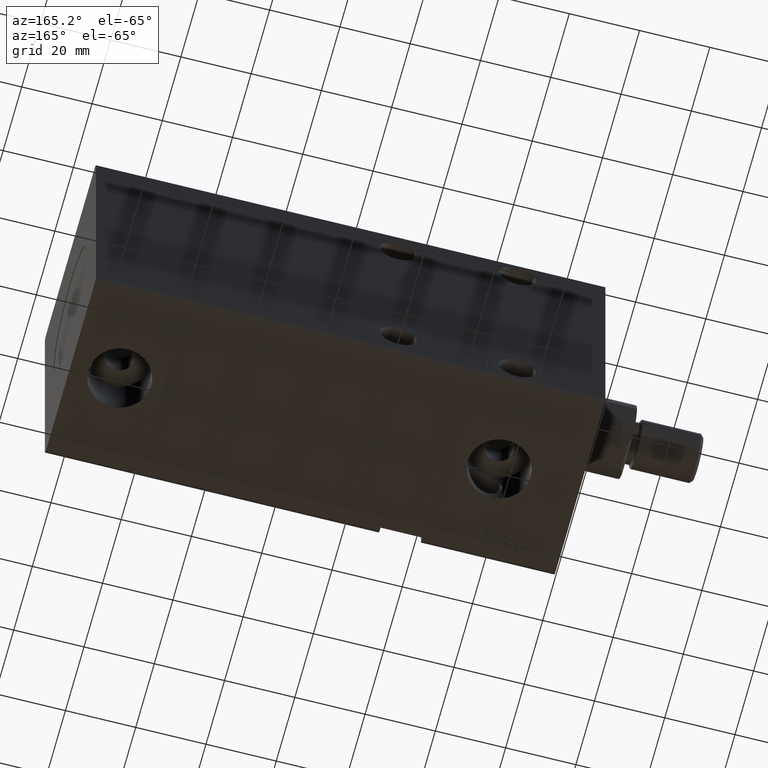
[diagram: clean part render]
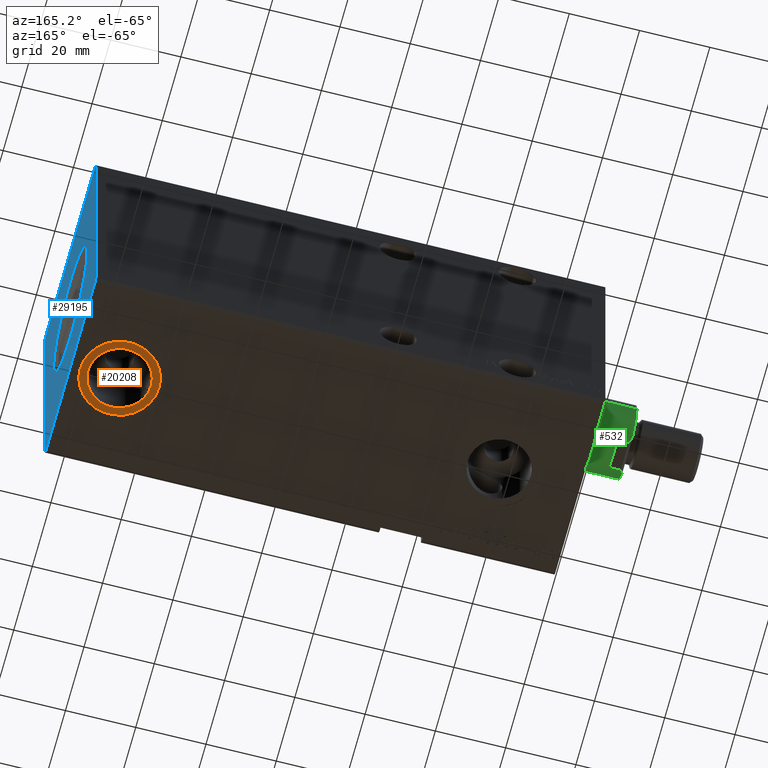
[diagram: same view with three faces highlighted in distinct colors, each labeled with its STEP entity id]
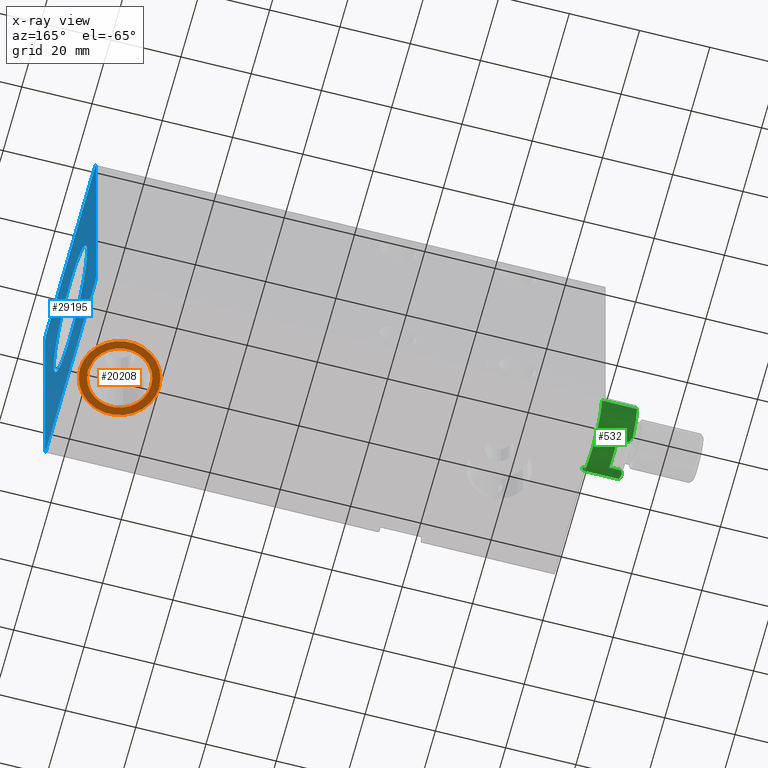
[diagram: x-ray of the same camera — body ghosted, the three highlighted faces saturated]
A machine part, auxiliary view with three faces highlighted in distinct colors.
The next image is the same camera in x-ray (body ghosted, the three faces saturated) — at least one of them is partly hidden behind the body in this view.
Their STEP definitions:

[orange] entity #20208 — the highlighted planar face has unit normal (0, 0, -1).
#1212 = ORIENTED_EDGE ( 'NONE', *, *, #2787, .F. ) ;
#1744 = CIRCLE ( 'NONE', #2369, 8.999999999999994671 ) ;
#2094 = DIRECTION ( 'NONE',  ( 0.000000000000000000, 0.000000000000000000, -1.000000000000000000 ) ) ;
#2369 = AXIS2_PLACEMENT_3D ( 'NONE', #18526, #34290, #12471 ) ;
#2787 = EDGE_CURVE ( 'NONE', #6159, #21923, #1744, .T. ) ;
#4942 = CARTESIAN_POINT ( 'NONE',  ( 130.9999999999999432, -1.771764358548707728E-14, -37.39999999999999147 ) ) ;
#5430 = AXIS2_PLACEMENT_3D ( 'NONE', #7966, #2094, #20269 ) ;
#6159 = VERTEX_POINT ( 'NONE', #24823 ) ;
#7966 = CARTESIAN_POINT ( 'NONE',  ( 130.9999999999999432, -1.771764358548707728E-14, -37.39999999999999147 ) ) ;
#8074 = EDGE_CURVE ( 'NONE', #21923, #6159, #28478, .T. ) ;
#10386 = DIRECTION ( 'NONE',  ( -1.000000000000000000, 0.000000000000000000, 0.000000000000000000 ) ) ;
#11186 = FACE_BOUND ( 'NONE', #33023, .T. ) ;
#12356 = AXIS2_PLACEMENT_3D ( 'NONE', #25749, #38079, #10386 ) ;
#12471 = DIRECTION ( 'NONE',  ( -1.000000000000000000, 0.000000000000000000, 0.000000000000000000 ) ) ;
#12683 = DIRECTION ( 'NONE',  ( 0.000000000000000000, 0.000000000000000000, -1.000000000000000000 ) ) ;
#13829 = AXIS2_PLACEMENT_3D ( 'NONE', #33518, #12683, #21394 ) ;
#14211 = DIRECTION ( 'NONE',  ( 0.000000000000000000, 0.000000000000000000, -1.000000000000000000 ) ) ;
#16347 = AXIS2_PLACEMENT_3D ( 'NONE', #4942, #14211, #29179 ) ;
#18526 = CARTESIAN_POINT ( 'NONE',  ( 130.9999999999999432, -1.771764358548707728E-14, -37.39999999999999147 ) ) ;
#19805 = CARTESIAN_POINT ( 'NONE',  ( 121.9999999999999574, -1.771764358548707728E-14, -37.39999999999999147 ) ) ;
#20163 = EDGE_CURVE ( 'NONE', #22786, #27234, #20235, .T. ) ;
#20208 = ADVANCED_FACE ( 'NONE', ( #11186, #23511 ), #38480, .T. ) ;
#20235 = CIRCLE ( 'NONE', #5430, 11.24999999999999645 ) ;
#20269 = DIRECTION ( 'NONE',  ( -1.000000000000000000, 0.000000000000000000, 0.000000000000000000 ) ) ;
#21394 = DIRECTION ( 'NONE',  ( -1.000000000000000000, 0.000000000000000000, 0.000000000000000000 ) ) ;
#21890 = EDGE_LOOP ( 'NONE', ( #31129, #22440 ) ) ;
#21923 = VERTEX_POINT ( 'NONE', #19805 ) ;
#22440 = ORIENTED_EDGE ( 'NONE', *, *, #20163, .T. ) ;
#22786 = VERTEX_POINT ( 'NONE', #22845 ) ;
#22845 = CARTESIAN_POINT ( 'NONE',  ( 142.2499999999999432, -1.633991593644630371E-14, -37.39999999999999147 ) ) ;
#23511 = FACE_OUTER_BOUND ( 'NONE', #21890, .T. ) ;
#24823 = CARTESIAN_POINT ( 'NONE',  ( 139.9999999999999716, -1.661546146625446095E-14, -37.39999999999999147 ) ) ;
#25749 = CARTESIAN_POINT ( 'NONE',  ( 130.9999999999999432, -1.771764358548707728E-14, -37.39999999999999147 ) ) ;
#26414 = EDGE_CURVE ( 'NONE', #27234, #22786, #39646, .T. ) ;
#27234 = VERTEX_POINT ( 'NONE', #32910 ) ;
#28478 = CIRCLE ( 'NONE', #12356, 8.999999999999994671 ) ;
#29179 = DIRECTION ( 'NONE',  ( -1.000000000000000000, 0.000000000000000000, -0.000000000000000000 ) ) ;
#31129 = ORIENTED_EDGE ( 'NONE', *, *, #26414, .T. ) ;
#32910 = CARTESIAN_POINT ( 'NONE',  ( 119.7499999999999574, -1.771764358548707728E-14, -37.39999999999999147 ) ) ;
#33023 = EDGE_LOOP ( 'NONE', ( #35270, #1212 ) ) ;
#33518 = CARTESIAN_POINT ( 'NONE',  ( 130.9999999999999432, -1.771764358548707728E-14, -37.39999999999999147 ) ) ;
#34290 = DIRECTION ( 'NONE',  ( 0.000000000000000000, 0.000000000000000000, -1.000000000000000000 ) ) ;
#35270 = ORIENTED_EDGE ( 'NONE', *, *, #8074, .F. ) ;
#38079 = DIRECTION ( 'NONE',  ( 0.000000000000000000, 0.000000000000000000, -1.000000000000000000 ) ) ;
#38480 = PLANE ( 'NONE',  #16347 ) ;
#39646 = CIRCLE ( 'NONE', #13829, 11.24999999999999645 ) ;

[blue] entity #29195 — the highlighted planar face has unit normal (1, 0, 0).
#711 = LINE ( 'NONE', #32227, #31111 ) ;
#1101 = CARTESIAN_POINT ( 'NONE',  ( 145.0000000000000000, 26.50000000000000711, -37.49999999999999289 ) ) ;
#1561 = VECTOR ( 'NONE', #19340, 1000.000000000000000 ) ;
#2174 = ORIENTED_EDGE ( 'NONE', *, *, #9287, .F. ) ;
#2483 = EDGE_CURVE ( 'NONE', #22984, #27415, #27282, .T. ) ;
#3860 = CARTESIAN_POINT ( 'NONE',  ( 145.0000000000000000, 26.50000000000000355, 37.50000000000000711 ) ) ;
#5126 = ORIENTED_EDGE ( 'NONE', *, *, #11598, .T. ) ;
#5602 = EDGE_CURVE ( 'NONE', #16958, #10257, #39876, .T. ) ;
#6293 = ORIENTED_EDGE ( 'NONE', *, *, #16533, .T. ) ;
#6513 = CARTESIAN_POINT ( 'NONE',  ( 145.0000000000000000, 0.000000000000000000, -18.00000000000000000 ) ) ;
#7042 = CARTESIAN_POINT ( 'NONE',  ( 145.0000000000000000, -27.50000000000000711, 36.50000000000000711 ) ) ;
#7733 = CARTESIAN_POINT ( 'NONE',  ( 145.0000000000000000, 0.000000000000000000, 0.000000000000000000 ) ) ;
#7762 = CARTESIAN_POINT ( 'NONE',  ( 145.0000000000000000, 27.50000000000000711, -36.49999999999999289 ) ) ;
#7927 = DIRECTION ( 'NONE',  ( 0.000000000000000000, 0.000000000000000000, -1.000000000000000000 ) ) ;
#8727 = ORIENTED_EDGE ( 'NONE', *, *, #31079, .T. ) ;
#8906 = CARTESIAN_POINT ( 'NONE',  ( 145.0000000000000000, -26.50000000000000355, -37.49999999999999289 ) ) ;
#9179 = CARTESIAN_POINT ( 'NONE',  ( 145.0000000000000000, -27.50000000000000355, -36.49999999999998579 ) ) ;
#9228 = ORIENTED_EDGE ( 'NONE', *, *, #14860, .T. ) ;
#9287 = EDGE_CURVE ( 'NONE', #10257, #16958, #21136, .T. ) ;
#9299 = CARTESIAN_POINT ( 'NONE',  ( 145.0000000000000000, -26.50000000000000711, 37.50000000000000711 ) ) ;
#9562 = AXIS2_PLACEMENT_3D ( 'NONE', #7733, #11539, #7927 ) ;
#10257 = VERTEX_POINT ( 'NONE', #6513 ) ;
#10316 = LINE ( 'NONE', #3860, #17576 ) ;
#10981 = LINE ( 'NONE', #7762, #13913 ) ;
#11250 = CARTESIAN_POINT ( 'NONE',  ( 145.0000000000000000, 0.000000000000000000, 0.000000000000000000 ) ) ;
#11539 = DIRECTION ( 'NONE',  ( 1.000000000000000000, 0.000000000000000000, 0.000000000000000000 ) ) ;
#11598 = EDGE_CURVE ( 'NONE', #33071, #21192, #39415, .T. ) ;
#12586 = CARTESIAN_POINT ( 'NONE',  ( 145.0000000000000000, 27.50000000000000711, -36.49999999999999289 ) ) ;
#12589 = PLANE ( 'NONE',  #39712 ) ;
#13333 = VERTEX_POINT ( 'NONE', #25522 ) ;
#13622 = LINE ( 'NONE', #1101, #28712 ) ;
#13913 = VECTOR ( 'NONE', #32391, 1000.000000000000000 ) ;
#14860 = EDGE_CURVE ( 'NONE', #13333, #39306, #24649, .T. ) ;
#15020 = FACE_OUTER_BOUND ( 'NONE', #37877, .T. ) ;
#15808 = CARTESIAN_POINT ( 'NONE',  ( 145.0000000000000000, 0.000000000000000000, 0.000000000000000000 ) ) ;
#15849 = DIRECTION ( 'NONE',  ( 0.000000000000000000, 0.7071067811865451302, -0.7071067811865500152 ) ) ;
#15890 = VERTEX_POINT ( 'NONE', #12586 ) ;
#16306 = ORIENTED_EDGE ( 'NONE', *, *, #24423, .T. ) ;
#16533 = EDGE_CURVE ( 'NONE', #29241, #22984, #711, .T. ) ;
#16958 = VERTEX_POINT ( 'NONE', #19433 ) ;
#17168 = EDGE_CURVE ( 'NONE', #21192, #13333, #10316, .T. ) ;
#17576 = VECTOR ( 'NONE', #38003, 1000.000000000000000 ) ;
#17607 = EDGE_LOOP ( 'NONE', ( #2174, #28687 ) ) ;
#18037 = CARTESIAN_POINT ( 'NONE',  ( 145.0000000000000000, 26.50000000000000355, 37.50000000000000711 ) ) ;
#18171 = DIRECTION ( 'NONE',  ( 0.000000000000000000, 1.000000000000000000, 0.000000000000000000 ) ) ;
#19340 = DIRECTION ( 'NONE',  ( 0.000000000000000000, 4.752667057470705491E-17, -1.000000000000000000 ) ) ;
#19433 = CARTESIAN_POINT ( 'NONE',  ( 145.0000000000000000, 2.204364238465235428E-15, 18.00000000000000000 ) ) ;
#20901 = CARTESIAN_POINT ( 'NONE',  ( 145.0000000000000000, 27.50000000000000355, 36.50000000000000711 ) ) ;
#21010 = CARTESIAN_POINT ( 'NONE',  ( 145.0000000000000000, 27.50000000000000355, 36.50000000000000711 ) ) ;
#21136 = CIRCLE ( 'NONE', #9562, 18.00000000000000000 ) ;
#21192 = VERTEX_POINT ( 'NONE', #18037 ) ;
#21600 = LINE ( 'NONE', #7042, #1561 ) ;
#21607 = DIRECTION ( 'NONE',  ( 0.000000000000000000, -0.7071067811865474617, -0.7071067811865474617 ) ) ;
#21676 = CARTESIAN_POINT ( 'NONE',  ( 145.0000000000000000, 26.50000000000000711, -37.49999999999999289 ) ) ;
#21989 = EDGE_CURVE ( 'NONE', #39306, #29241, #21600, .T. ) ;
#22984 = VERTEX_POINT ( 'NONE', #37561 ) ;
#23383 = DIRECTION ( 'NONE',  ( 1.000000000000000000, 0.000000000000000000, 0.000000000000000000 ) ) ;
#24423 = EDGE_CURVE ( 'NONE', #27415, #15890, #13622, .T. ) ;
#24649 = LINE ( 'NONE', #9299, #36228 ) ;
#24925 = DIRECTION ( 'NONE',  ( 0.000000000000000000, 0.000000000000000000, -1.000000000000000000 ) ) ;
#25522 = CARTESIAN_POINT ( 'NONE',  ( 145.0000000000000000, -26.50000000000000711, 37.50000000000000711 ) ) ;
#26262 = VECTOR ( 'NONE', #18171, 1000.000000000000000 ) ;
#26342 = AXIS2_PLACEMENT_3D ( 'NONE', #11250, #23383, #32068 ) ;
#27282 = LINE ( 'NONE', #8906, #26262 ) ;
#27283 = CARTESIAN_POINT ( 'NONE',  ( 145.0000000000000000, -27.50000000000000711, 36.50000000000000711 ) ) ;
#27415 = VERTEX_POINT ( 'NONE', #21676 ) ;
#28150 = DIRECTION ( 'NONE',  ( 1.000000000000000000, 0.000000000000000000, 0.000000000000000000 ) ) ;
#28687 = ORIENTED_EDGE ( 'NONE', *, *, #5602, .F. ) ;
#28712 = VECTOR ( 'NONE', #38091, 1000.000000000000114 ) ;
#29195 = ADVANCED_FACE ( 'NONE', ( #36651, #15020 ), #12589, .T. ) ;
#29241 = VERTEX_POINT ( 'NONE', #9179 ) ;
#31079 = EDGE_CURVE ( 'NONE', #15890, #33071, #10981, .T. ) ;
#31111 = VECTOR ( 'NONE', #15849, 1000.000000000000114 ) ;
#32068 = DIRECTION ( 'NONE',  ( 0.000000000000000000, 0.000000000000000000, -1.000000000000000000 ) ) ;
#32227 = CARTESIAN_POINT ( 'NONE',  ( 145.0000000000000000, -27.50000000000000355, -36.49999999999998579 ) ) ;
#32391 = DIRECTION ( 'NONE',  ( 0.000000000000000000, -4.752667057470704875E-17, 1.000000000000000000 ) ) ;
#33071 = VERTEX_POINT ( 'NONE', #20901 ) ;
#33354 = ORIENTED_EDGE ( 'NONE', *, *, #17168, .T. ) ;
#36228 = VECTOR ( 'NONE', #21607, 1000.000000000000114 ) ;
#36575 = DIRECTION ( 'NONE',  ( 0.000000000000000000, -0.7071067811865474617, 0.7071067811865474617 ) ) ;
#36651 = FACE_BOUND ( 'NONE', #17607, .T. ) ;
#37561 = CARTESIAN_POINT ( 'NONE',  ( 145.0000000000000000, -26.50000000000000355, -37.49999999999999289 ) ) ;
#37877 = EDGE_LOOP ( 'NONE', ( #5126, #33354, #9228, #38747, #6293, #39726, #16306, #8727 ) ) ;
#37996 = VECTOR ( 'NONE', #36575, 1000.000000000000114 ) ;
#38003 = DIRECTION ( 'NONE',  ( 0.000000000000000000, -1.000000000000000000, 0.000000000000000000 ) ) ;
#38091 = DIRECTION ( 'NONE',  ( 0.000000000000000000, 0.7071067811865474617, 0.7071067811865474617 ) ) ;
#38747 = ORIENTED_EDGE ( 'NONE', *, *, #21989, .T. ) ;
#39306 = VERTEX_POINT ( 'NONE', #27283 ) ;
#39415 = LINE ( 'NONE', #21010, #37996 ) ;
#39712 = AXIS2_PLACEMENT_3D ( 'NONE', #15808, #28150, #24925 ) ;
#39726 = ORIENTED_EDGE ( 'NONE', *, *, #2483, .T. ) ;
#39876 = CIRCLE ( 'NONE', #26342, 18.00000000000000000 ) ;

[green] entity #532 — the highlighted cylindrical surface (partial cylindrical patch) has radius 10.46 mm, axis along (-1, -0, -0).
#56 = DIRECTION ( 'NONE',  ( -0.000000000000000000, -1.827169771437783368E-16, 1.000000000000000000 ) ) ;
#444 = CARTESIAN_POINT ( 'NONE',  ( 0.000000000000000000, -2.347913156297551696E-14, 128.5000000000000000 ) ) ;
#532 = ADVANCED_FACE ( 'NONE', ( #37030 ), #24902, .T. ) ;
#652 = EDGE_CURVE ( 'NONE', #37500, #34400, #35512, .T. ) ;
#893 = LINE ( 'NONE', #13208, #3046 ) ;
#1196 = CARTESIAN_POINT ( 'NONE',  ( -9.056889589612579172, -5.256118063110188920, 128.2331104103874679 ) ) ;
#1376 = VERTEX_POINT ( 'NONE', #28522 ) ;
#1413 = EDGE_CURVE ( 'NONE', #34400, #28186, #24708, .T. ) ;
#1822 = VECTOR ( 'NONE', #8565, 1000.000000000000000 ) ;
#3046 = VECTOR ( 'NONE', #25545, 1000.000000000000000 ) ;
#3224 = ORIENTED_EDGE ( 'NONE', *, *, #36280, .F. ) ;
#3251 = EDGE_CURVE ( 'NONE', #29637, #1376, #893, .T. ) ;
#4152 = CARTESIAN_POINT ( 'NONE',  ( 0.000000000000000000, -10.46000000000002395, 128.5000000000000000 ) ) ;
#4698 = DIRECTION ( 'NONE',  ( 0.000000000000000000, -1.000000000000000000, 0.000000000000000000 ) ) ;
#5055 = AXIS2_PLACEMENT_3D ( 'NONE', #33392, #5732, #29967 ) ;
#5144 = CARTESIAN_POINT ( 'NONE',  ( -9.500000000000000000, -4.377396486497445061, 128.5000000000000000 ) ) ;
#5495 = CARTESIAN_POINT ( 'NONE',  ( -9.500000000000000000, -4.377396486497445061, 127.7900000000000205 ) ) ;
#5732 = DIRECTION ( 'NONE',  ( 0.000000000000000000, 0.000000000000000000, 1.000000000000000000 ) ) ;
#6160 = VERTEX_POINT ( 'NONE', #8884 ) ;
#6332 = EDGE_CURVE ( 'NONE', #18042, #6160, #25669, .T. ) ;
#7533 = ORIENTED_EDGE ( 'NONE', *, *, #3251, .T. ) ;
#8261 = AXIS2_PLACEMENT_3D ( 'NONE', #37539, #9861, #19531 ) ;
#8535 = CARTESIAN_POINT ( 'NONE',  ( 0.000000000000000000, -2.347913156297551696E-14, 128.5000000000000000 ) ) ;
#8565 = DIRECTION ( 'NONE',  ( 0.000000000000000000, 1.827169771437783368E-16, -1.000000000000000000 ) ) ;
#8884 = CARTESIAN_POINT ( 'NONE',  ( -8.790000000000038227, 5.669876541865709996, 128.5000000000000000 ) ) ;
#9358 = DIRECTION ( 'NONE',  ( -0.000000000000000000, -1.827169771437783368E-16, 1.000000000000000000 ) ) ;
#9861 = DIRECTION ( 'NONE',  ( -0.000000000000000000, -1.827169771437783368E-16, 1.000000000000000000 ) ) ;
#11597 = AXIS2_PLACEMENT_3D ( 'NONE', #444, #56, #21462 ) ;
#11693 = EDGE_CURVE ( 'NONE', #34967, #26977, #31393, .T. ) ;
#11749 = DIRECTION ( 'NONE',  ( 0.000000000000000000, -1.000000000000000000, 0.000000000000000000 ) ) ;
#12628 = ORIENTED_EDGE ( 'NONE', *, *, #1413, .T. ) ;
#13208 = CARTESIAN_POINT ( 'NONE',  ( -9.500000000000000000, 4.377396486497397987, 128.5000000000000000 ) ) ;
#13644 = ORIENTED_EDGE ( 'NONE', *, *, #20688, .F. ) ;
#16668 = CARTESIAN_POINT ( 'NONE',  ( -9.500000000000000000, 4.377396486497398875, 124.5000000000000000 ) ) ;
#18042 = VERTEX_POINT ( 'NONE', #27319 ) ;
#18348 = EDGE_LOOP ( 'NONE', ( #13644, #29846, #12628, #28197, #24166, #18760, #3224, #7533, #35610, #22766 ) ) ;
#18405 = AXIS2_PLACEMENT_3D ( 'NONE', #8535, #33363, #11749 ) ;
#18760 = ORIENTED_EDGE ( 'NONE', *, *, #36327, .T. ) ;
#19531 = DIRECTION ( 'NONE',  ( 0.000000000000000000, -1.000000000000000000, 0.000000000000000000 ) ) ;
#20688 = EDGE_CURVE ( 'NONE', #37500, #18042, #30714, .T. ) ;
#21077 = CARTESIAN_POINT ( 'NONE',  ( -9.293949384395547852, 4.824575729748583619, 127.9960506156044886 ) ) ;
#21462 = DIRECTION ( 'NONE',  ( 0.000000000000000000, -1.000000000000000000, 0.000000000000000000 ) ) ;
#21811 = CARTESIAN_POINT ( 'NONE',  ( -8.790000000000038227, -5.669876541865757069, 128.5000000000000000 ) ) ;
#22596 = AXIS2_PLACEMENT_3D ( 'NONE', #28927, #25489, #4698 ) ;
#22766 = ORIENTED_EDGE ( 'NONE', *, *, #6332, .F. ) ;
#22894 = CARTESIAN_POINT ( 'NONE',  ( -9.500000000000000000, -4.377396486497444172, 124.5000000000000000 ) ) ;
#24166 = ORIENTED_EDGE ( 'NONE', *, *, #11693, .T. ) ;
#24708 = LINE ( 'NONE', #37036, #30337 ) ;
#24883 = EDGE_CURVE ( 'NONE', #1376, #6160, #39677, .T. ) ;
#24902 = CYLINDRICAL_SURFACE ( 'NONE', #11597, 10.45999999999999908 ) ;
#25393 = CARTESIAN_POINT ( 'NONE',  ( 1.280980551908131330E-15, 10.45999999999997421, 128.5000000000000000 ) ) ;
#25489 = DIRECTION ( 'NONE',  ( -0.000000000000000000, -1.827169771437783368E-16, 1.000000000000000000 ) ) ;
#25545 = DIRECTION ( 'NONE',  ( -0.000000000000000000, -1.827169771437783368E-16, 1.000000000000000000 ) ) ;
#25669 = CIRCLE ( 'NONE', #8261, 10.46000000000000085 ) ;
#26043 = VECTOR ( 'NONE', #31850, 1000.000000000000000 ) ;
#26081 = EDGE_CURVE ( 'NONE', #34967, #28186, #35852, .T. ) ;
#26354 = LINE ( 'NONE', #5144, #1822 ) ;
#26557 = CARTESIAN_POINT ( 'NONE',  ( -8.790000000000038227, 5.669876541865709996, 128.5000000000000000 ) ) ;
#26977 = VERTEX_POINT ( 'NONE', #5495 ) ;
#26990 = CIRCLE ( 'NONE', #5055, 10.45999999999999908 ) ;
#27024 = CARTESIAN_POINT ( 'NONE',  ( 0.000000000000000000, 10.45999999999997776, 118.5000000000000000 ) ) ;
#27319 = CARTESIAN_POINT ( 'NONE',  ( 1.280980551908131330E-15, 10.45999999999997598, 128.5000000000000000 ) ) ;
#27356 = CARTESIAN_POINT ( 'NONE',  ( -9.056889589612579172, 5.256118063110140071, 128.2331104103874679 ) ) ;
#28186 = VERTEX_POINT ( 'NONE', #4152 ) ;
#28197 = ORIENTED_EDGE ( 'NONE', *, *, #26081, .F. ) ;
#28522 = CARTESIAN_POINT ( 'NONE',  ( -9.500000000000000000, 4.377396486497397987, 127.7900000000000205 ) ) ;
#28927 = CARTESIAN_POINT ( 'NONE',  ( 0.000000000000000000, -2.165196179153773265E-14, 118.5000000000000000 ) ) ;
#29637 = VERTEX_POINT ( 'NONE', #16668 ) ;
#29846 = ORIENTED_EDGE ( 'NONE', *, *, #652, .T. ) ;
#29967 = DIRECTION ( 'NONE',  ( 1.000000000000000000, 0.000000000000000000, 0.000000000000000000 ) ) ;
#30337 = VECTOR ( 'NONE', #9358, 1000.000000000000000 ) ;
#30714 = LINE ( 'NONE', #25393, #26043 ) ;
#31207 = VERTEX_POINT ( 'NONE', #22894 ) ;
#31393 =( BOUNDED_CURVE ( )  B_SPLINE_CURVE ( 3, ( #21811, #1196, #31689, #37759 ),
 .UNSPECIFIED., .F., .T. ) 
 B_SPLINE_CURVE_WITH_KNOTS ( ( 4, 4 ),
 ( 2.568714171481425890, 2.709811500076702462 ),
 .UNSPECIFIED. ) 
 CURVE ( )  GEOMETRIC_REPRESENTATION_ITEM ( )  RATIONAL_B_SPLINE_CURVE ( ( 1.000000000000000000, 0.9983416499762386431, 0.9983416499762386431, 1.000000000000000000 ) ) 
 REPRESENTATION_ITEM ( '' )  );
#31689 = CARTESIAN_POINT ( 'NONE',  ( -9.293949384395547852, -4.824575729748632469, 127.9960506156044886 ) ) ;
#31693 = CARTESIAN_POINT ( 'NONE',  ( 1.314046015485110656E-15, -10.46000000000002039, 118.5000000000000000 ) ) ;
#31850 = DIRECTION ( 'NONE',  ( -0.000000000000000000, -1.827169771437783368E-16, 1.000000000000000000 ) ) ;
#33363 = DIRECTION ( 'NONE',  ( -0.000000000000000000, -1.827169771437783368E-16, 1.000000000000000000 ) ) ;
#33392 = CARTESIAN_POINT ( 'NONE',  ( 0.000000000000000000, -2.274826365440040450E-14, 124.5000000000000000 ) ) ;
#34400 = VERTEX_POINT ( 'NONE', #31693 ) ;
#34878 = CARTESIAN_POINT ( 'NONE',  ( -8.790000000000038227, -5.669876541865757069, 128.5000000000000000 ) ) ;
#34967 = VERTEX_POINT ( 'NONE', #34878 ) ;
#35512 = CIRCLE ( 'NONE', #22596, 10.45999999999999908 ) ;
#35610 = ORIENTED_EDGE ( 'NONE', *, *, #24883, .T. ) ;
#35852 = CIRCLE ( 'NONE', #18405, 10.46000000000000085 ) ;
#36253 = CARTESIAN_POINT ( 'NONE',  ( -9.500000000000000000, 4.377396486497397987, 127.7900000000000205 ) ) ;
#36280 = EDGE_CURVE ( 'NONE', #29637, #31207, #26990, .T. ) ;
#36327 = EDGE_CURVE ( 'NONE', #26977, #31207, #26354, .T. ) ;
#37030 = FACE_OUTER_BOUND ( 'NONE', #18348, .T. ) ;
#37036 = CARTESIAN_POINT ( 'NONE',  ( 0.000000000000000000, -10.46000000000002395, 128.5000000000000000 ) ) ;
#37500 = VERTEX_POINT ( 'NONE', #27024 ) ;
#37539 = CARTESIAN_POINT ( 'NONE',  ( 0.000000000000000000, -2.347913156297551696E-14, 128.5000000000000000 ) ) ;
#37759 = CARTESIAN_POINT ( 'NONE',  ( -9.500000000000000000, -4.377396486497445061, 127.7900000000000205 ) ) ;
#39677 =( BOUNDED_CURVE ( )  B_SPLINE_CURVE ( 3, ( #36253, #21077, #27356, #26557 ),
 .UNSPECIFIED., .F., .F. ) 
 B_SPLINE_CURVE_WITH_KNOTS ( ( 4, 4 ),
 ( 3.573373807102883770, 3.714471135698160342 ),
 .UNSPECIFIED. ) 
 CURVE ( )  GEOMETRIC_REPRESENTATION_ITEM ( )  RATIONAL_B_SPLINE_CURVE ( ( 1.000000000000000000, 0.9983416499762386431, 0.9983416499762386431, 1.000000000000000000 ) ) 
 REPRESENTATION_ITEM ( '' )  );